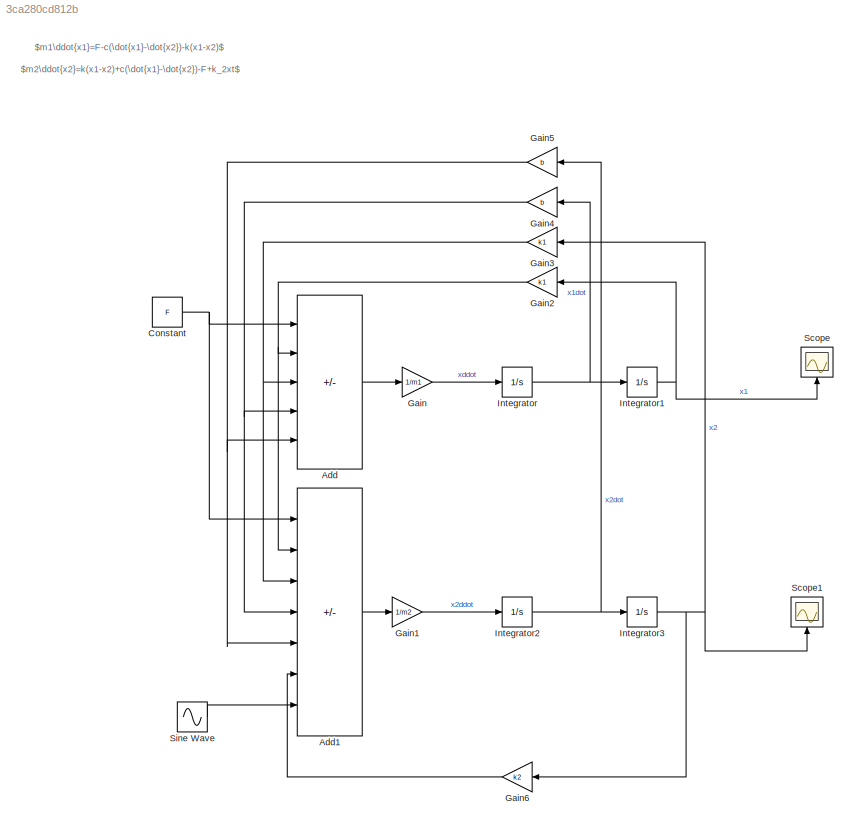
MODEL slx_3ca280cd812b
KIND model
CONFIG AbsTol = auto
CONFIG EnableMultiTasking = off
CONFIG FixedStep = auto
CONFIG MaxStep = auto
CONFIG MinStep = auto
CONFIG RelTol = 1e-3
CONFIG SampleTimeConstraint = Unconstrained
CONFIG SolverName = VariableStepAuto
CONFIG StartTime = 0.0
CONFIG StopTime = 10.0
BLOCK [Sum] Add
  IconShape = rectangular
  Inputs = +-+-+
  Ports = [5, 1]
BLOCK [Sum] Add1
  IconShape = rectangular
  Inputs = -+-+--+
  Ports = [7, 1]
BLOCK [Constant] Constant
  Value = F
BLOCK [Gain] Gain
  Gain = 1/m1
BLOCK [Gain] Gain1
  Gain = 1/m2
BLOCK [Gain] Gain2
  Gain = k1
  NameLocation = top
BLOCK [Gain] Gain3
  Gain = k1
  NameLocation = top
BLOCK [Gain] Gain4
  Gain = b
  NameLocation = top
BLOCK [Gain] Gain5
  Gain = b
  NameLocation = top
BLOCK [Gain] Gain6
  Gain = k2
  NameLocation = top
BLOCK [Integrator] Integrator
  Ports = [1, 1]
BLOCK [Integrator] Integrator1
  Ports = [1, 1]
BLOCK [Integrator] Integrator2
  Ports = [1, 1]
BLOCK [Integrator] Integrator3
  Ports = [1, 1]
BLOCK [Scope] Scope
  Floating = off
  NameLocation = right
  NumInputPorts = 1
  Ports = [1]
  ScopeSpecificationString = Simulink.scopes.TimeScopeBlockCfg('CurrentConfiguration', extmgr.ConfigurationSet(extmgr.Configuration('Core','General UI',true),extmgr.Configuration('Core','Source UI',true),extmgr.Configuration('Sources','WiredSimulink',true,'DataLoggingVariableName','ScopeData1'),extmgr.Configuration('Visuals','Time Domain',true,'SerializedDisplays',{struct('MinYLimReal','-1.27733','MaxYLimReal','1.285','YLabel...<+1430ch>
BLOCK [Scope] Scope1
  Floating = off
  NameLocation = right
  NumInputPorts = 1
  Ports = [1]
  ScopeSpecificationString = Simulink.scopes.TimeScopeBlockCfg('CurrentConfiguration', extmgr.ConfigurationSet(extmgr.Configuration('Core','General UI',true),extmgr.Configuration('Core','Source UI',true),extmgr.Configuration('Sources','WiredSimulink',true),extmgr.Configuration('Visuals','Time Domain',true,'SerializedDisplays',{struct('MinYLimReal','-0.00619','MaxYLimReal','0.00717','YLabelReal','','MinYLimMag','0.00000','MaxY...<+1353ch>
BLOCK [Sin] Sine Wave
  Ports = [0, 1]
  SampleTime = 0
ANNOTATION (root): $m2\ddot{x2}=k(x1-x2)+c(\dot{x1}-\dot{x2})-F+k_2xt$
ANNOTATION (root): $m1\ddot{x1}=F-c(\dot{x1}-\dot{x2})-k(x1-x2)$
LINE Add1:1 -> Gain1:1
LINE Add:1 -> Gain:1
NET Constant:1 -> Add1:1, Add:1
LINE Gain1:1 -> Integrator2:1
NET Gain2:1 -> Add1:2, Add:2
NET Gain3:1 -> Add1:3, Add:3
NET Gain4:1 -> Add1:4, Add:4
NET Gain5:1 -> Add1:5, Add:5
LINE Gain6:1 -> Add1:6
LINE Gain:1 -> Integrator:1
NET Integrator1:1 -> Gain2:1, Scope:1
NET Integrator2:1 -> Gain5:1, Integrator3:1
NET Integrator3:1 -> Gain3:1, Gain6:1, Scope1:1
NET Integrator:1 -> Gain4:1, Integrator1:1
LINE Sine Wave:1 -> Add1:7
note: NET lines group one-source signal fan-out (src -> all destinations, sorted); 1:1 wires keep LINE
